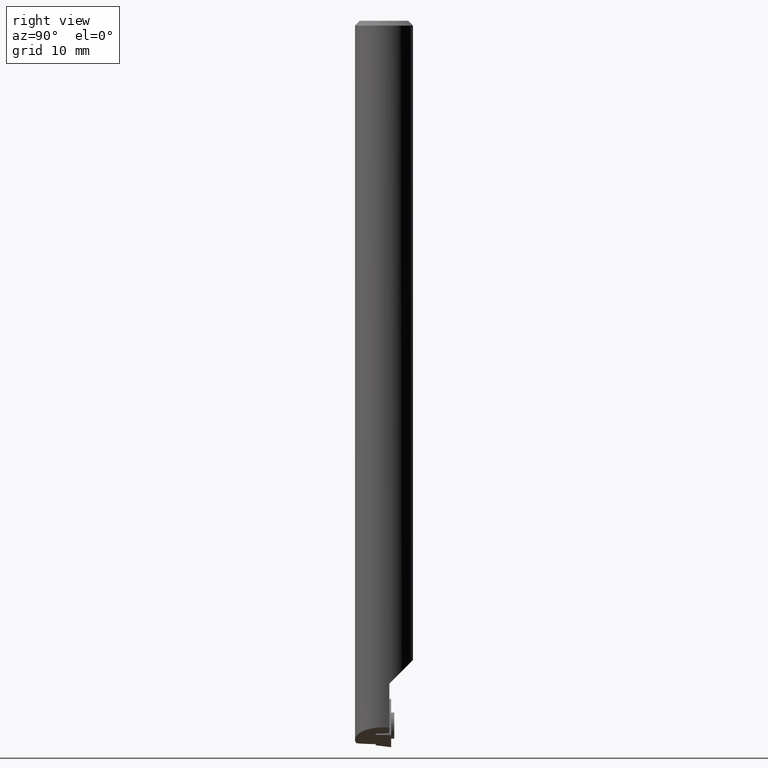
[diagram: clean part render]
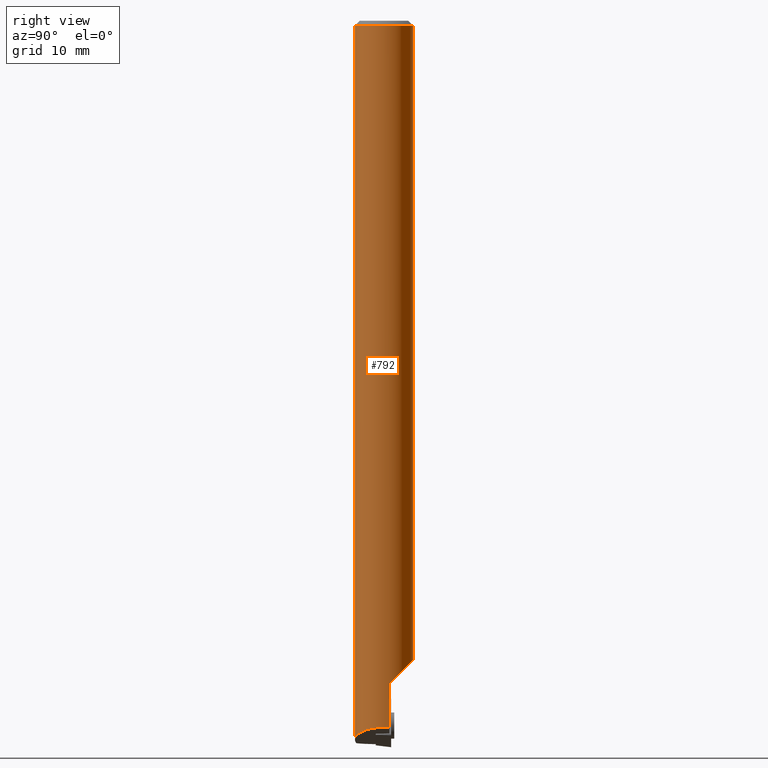
[diagram: same view with one face highlighted and labeled with its STEP entity id]
A machine part, right view. The second image highlights one B-rep face of the part: STEP entity #792.
In plain terms, the highlighted cylindrical surface (edge-blend (fillet) strip) has radius 3 mm, axis along (-0, -0, 1).
Its self-contained STEP definition (entity closure, byte-faithful):
#574=VERTEX_POINT('NONE',#1597);
#606=EDGE_CURVE('NONE',#870,#1242,#1631,.T.);
#616=EDGE_CURVE('NONE',#700,#1166,#1641,.T.);
#636=EDGE_CURVE('NONE',#870,#574,#1662,.T.);
#700=VERTEX_POINT('NONE',#1733);
#792=ADVANCED_FACE('NONE',(#1836),#1837,.T.);
#870=VERTEX_POINT('NONE',#1924);
#1034=EDGE_CURVE('NONE',#700,#1268,#2105,.T.);
#1080=EDGE_CURVE('NONE',#1242,#1268,#2156,.T.);
#1084=EDGE_CURVE('NONE',#1166,#574,#2162,.T.);
#1166=VERTEX_POINT('NONE',#2251);
#1242=VERTEX_POINT('NONE',#2334);
#1268=VERTEX_POINT('NONE',#2363);
#1597=CARTESIAN_POINT('',(0.0,2.99999999999999,-0.5));
#1631=(B_SPLINE_CURVE(3,(#2777,#2778,#2779,#2780),.UNSPECIFIED.,.F.,.F.)B_SPLINE_CURVE_WITH_KNOTS((4,4),(0.0,1.38642013575893),.UNSPECIFIED.)RATIONAL_B_SPLINE_CURVE((1.0,0.846132478187304,0.846132478187304,1.0))BOUNDED_CURVE()REPRESENTATION_ITEM('')GEOMETRIC_REPRESENTATION_ITEM()CURVE());
#1641=LINE('',#2800,#2801);
#1662=LINE('',#2840,#2841);
#1733=CARTESIAN_POINT('',(-3.67394039744206E-016,-3.0,-74.2129260060728));
#1836=FACE_OUTER_BOUND('',#3099,.T.);
#1837=CYLINDRICAL_SURFACE('',#3100,3.0);
#1924=CARTESIAN_POINT('',(0.0,3.0,-65.983437030462));
#2105=(B_SPLINE_CURVE(3,(#3457,#3458,#3459,#3460),.UNSPECIFIED.,.F.,.F.)B_SPLINE_CURVE_WITH_KNOTS((4,4),(4.71238898038469,6.46756149821555),.UNSPECIFIED.)RATIONAL_B_SPLINE_CURVE((1.0,0.759339766948462,0.759339766948462,1.0))BOUNDED_CURVE()REPRESENTATION_ITEM('')GEOMETRIC_REPRESENTATION_ITEM()CURVE());
#2156=LINE('',#3541,#3542);
#2162=CIRCLE('',#3549,2.99999999999999);
#2251=CARTESIAN_POINT('',(-3.67394039744205E-016,-2.99999999999999,-0.5));
#2334=CARTESIAN_POINT('',(2.94915242061172,0.55,-68.433437030462));
#2363=CARTESIAN_POINT('',(2.94915242061172,0.55,-72.9610850743595));
#2777=CARTESIAN_POINT('',(0.0,3.0,-65.983437030462));
#2778=CARTESIAN_POINT('',(1.51042458928338,3.0,-65.983437030462));
#2779=CARTESIAN_POINT('',(2.67224124590977,2.03482411121219,-66.9486129192498));
#2780=CARTESIAN_POINT('',(2.94915242061172,0.55,-68.433437030462));
#2800=CARTESIAN_POINT('',(-3.67394039744206E-016,-3.0,17.8735926305015));
#2801=VECTOR('',#4407,1000.0);
#2840=CARTESIAN_POINT('',(0.0,3.0,17.8735926305015));
#2841=VECTOR('',#4429,1000.0);
#3099=EDGE_LOOP('',(#4656,#4657,#4658,#4659,#4660,#4661));
#3100=AXIS2_PLACEMENT_3D('',#4662,#4663,#4664);
#3457=CARTESIAN_POINT('',(-3.67394039744206E-016,-3.0,-74.2129260060728));
#3458=CARTESIAN_POINT('',(2.02596716453324,-3.0,-73.3529539662608));
#3459=CARTESIAN_POINT('',(3.32057973410949,-1.4416286557877,-72.8034235337273));
#3460=CARTESIAN_POINT('',(2.94915242061172,0.55,-72.9610850743595));
#3541=CARTESIAN_POINT('',(2.94915242061173,0.55,17.8735926305015));
#3542=VECTOR('',#5066,1000.0);
#3549=AXIS2_PLACEMENT_3D('',#5084,#5085,#5086);
#4407=DIRECTION('',(0.0,-0.0,1.0));
#4429=DIRECTION('',(0.0,-0.0,1.0));
#4656=ORIENTED_EDGE('',*,*,#616,.F.);
#4657=ORIENTED_EDGE('',*,*,#1034,.T.);
#4658=ORIENTED_EDGE('',*,*,#1080,.F.);
#4659=ORIENTED_EDGE('',*,*,#606,.F.);
#4660=ORIENTED_EDGE('',*,*,#636,.T.);
#4661=ORIENTED_EDGE('',*,*,#1084,.F.);
#4662=CARTESIAN_POINT('',(0.0,0.0,17.8735926305015));
#4663=DIRECTION('',(-0.0,-0.0,1.0));
#4664=DIRECTION('',(0.0,1.0,0.0));
#5066=DIRECTION('',(0.0,0.0,-1.0));
#5084=CARTESIAN_POINT('',(0.0,0.0,-0.5));
#5085=DIRECTION('',(0.0,-0.0,1.0));
#5086=DIRECTION('',(0.0,1.0,0.0));